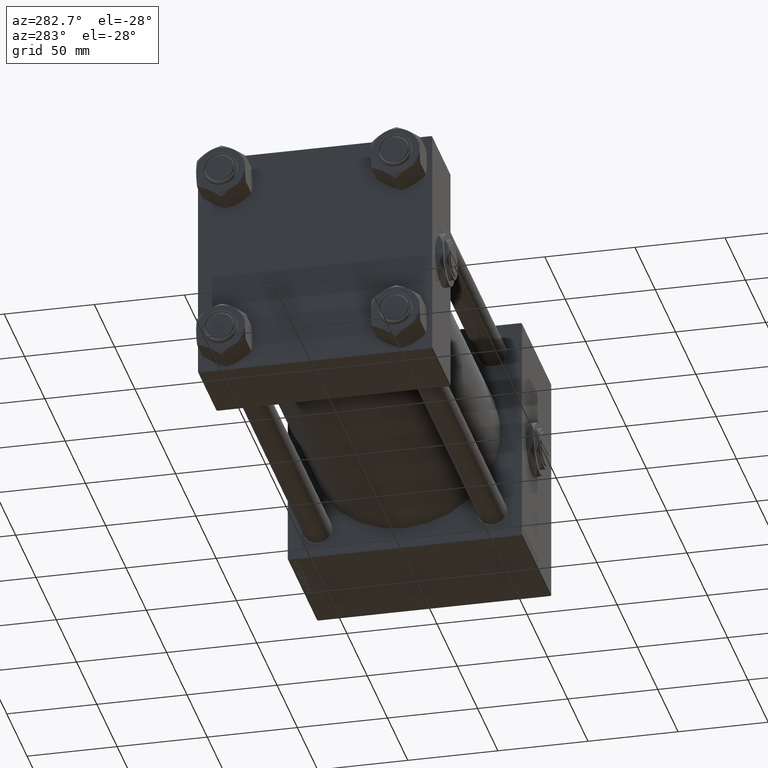
[diagram: clean part render]
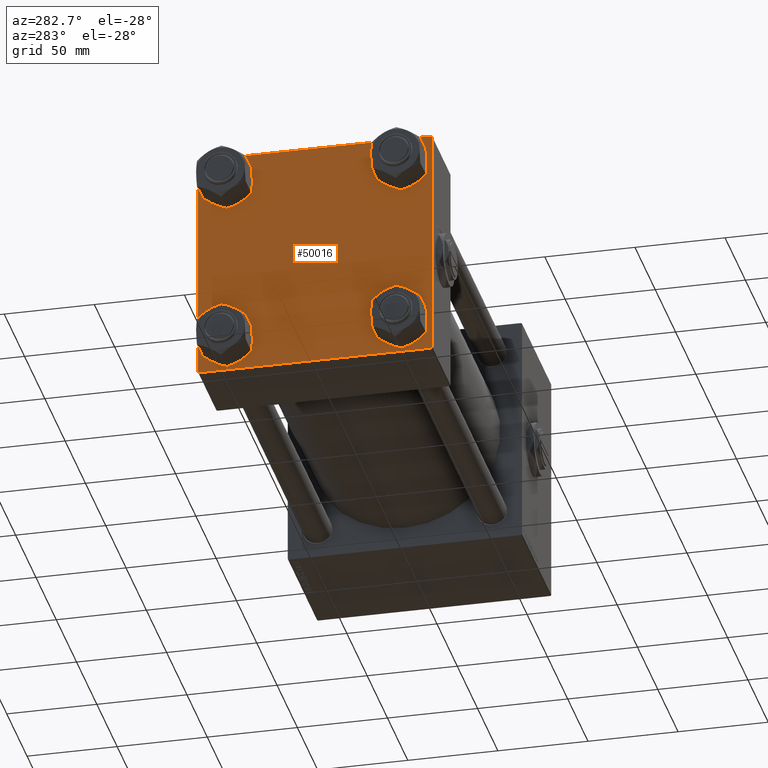
[diagram: same view with one face highlighted and labeled with its STEP entity id]
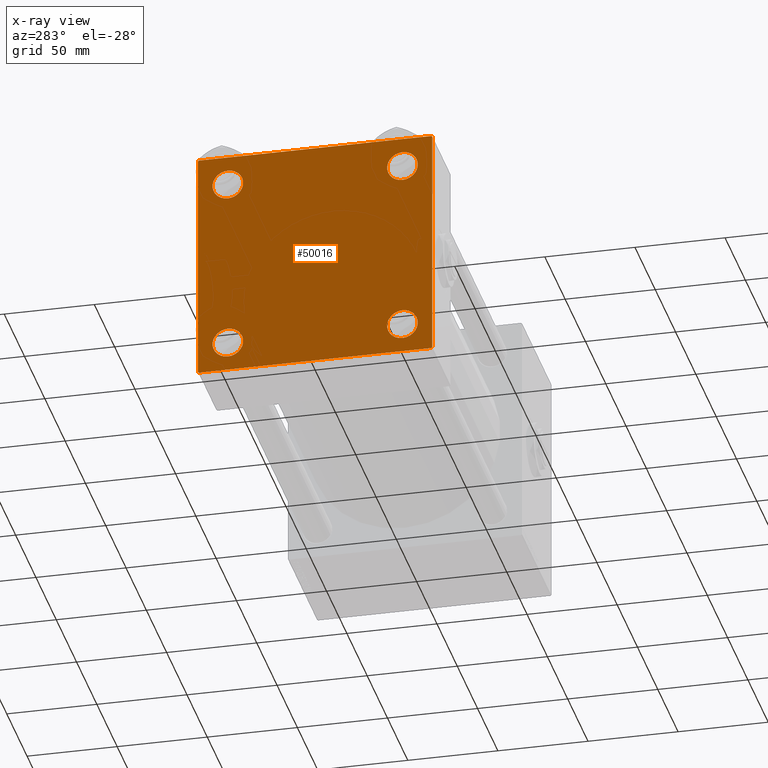
[diagram: x-ray of the same camera — body ghosted, the highlighted face saturated]
A machine part, auxiliary view. The second image highlights one B-rep face of the part: STEP entity #50016.
The next image is the same camera in x-ray: the body ghosted, the highlighted face saturated — about 0% of this face is hidden behind the body in this view.
In plain terms, the highlighted planar face has unit normal (-1, 0, 0).
Its self-contained STEP definition (entity closure, byte-faithful):
#99 = CARTESIAN_POINT ( 'NONE',  ( 0.000000000000000000, 48.45000000000000995, 39.95000000000000284 ) ) ;
#860 = VECTOR ( 'NONE', #36098, 1000.000000000000000 ) ;
#947 = EDGE_CURVE ( 'NONE', #11981, #24299, #25881, .T. ) ;
#997 = CARTESIAN_POINT ( 'NONE',  ( 0.000000000000000000, -65.00000000000000000, 64.50000000000000000 ) ) ;
#1077 = CARTESIAN_POINT ( 'NONE',  ( 0.000000000000000000, 48.45000000000000995, 48.45000000000001705 ) ) ;
#1136 = DIRECTION ( 'NONE',  ( 0.000000000000000000, -0.7071067811865279218, 0.7071067811865671127 ) ) ;
#1317 = EDGE_CURVE ( 'NONE', #9858, #25550, #48285, .T. ) ;
#1516 = AXIS2_PLACEMENT_3D ( 'NONE', #27904, #32906, #23370 ) ;
#1529 = ORIENTED_EDGE ( 'NONE', *, *, #40822, .T. ) ;
#1585 = ORIENTED_EDGE ( 'NONE', *, *, #35557, .T. ) ;
#1710 = EDGE_CURVE ( 'NONE', #24299, #15616, #50379, .T. ) ;
#1885 = DIRECTION ( 'NONE',  ( 1.000000000000000000, -0.000000000000000000, 0.000000000000000000 ) ) ;
#2509 = PLANE ( 'NONE',  #17372 ) ;
#2564 = EDGE_CURVE ( 'NONE', #47396, #10895, #8824, .T. ) ;
#3010 = AXIS2_PLACEMENT_3D ( 'NONE', #9496, #42393, #26075 ) ;
#3452 = DIRECTION ( 'NONE',  ( 0.000000000000000000, 0.000000000000000000, -1.000000000000000000 ) ) ;
#3755 = VERTEX_POINT ( 'NONE', #997 ) ;
#3824 = CARTESIAN_POINT ( 'NONE',  ( 0.000000000000000000, 48.45000000000000995, -39.95000000000000284 ) ) ;
#5153 = EDGE_LOOP ( 'NONE', ( #34721, #9813 ) ) ;
#6446 = VECTOR ( 'NONE', #48972, 1000.000000000000114 ) ;
#6722 = ORIENTED_EDGE ( 'NONE', *, *, #12443, .T. ) ;
#7063 = FACE_BOUND ( 'NONE', #30147, .T. ) ;
#7683 = CARTESIAN_POINT ( 'NONE',  ( 0.000000000000000000, 65.00000000000000000, 64.49999999999998579 ) ) ;
#7717 = VERTEX_POINT ( 'NONE', #29742 ) ;
#8033 = CARTESIAN_POINT ( 'NONE',  ( 0.000000000000000000, 64.74999999999998579, 64.74999999999998579 ) ) ;
#8527 = LINE ( 'NONE', #24854, #45633 ) ;
#8824 = LINE ( 'NONE', #8033, #6446 ) ;
#8950 = CARTESIAN_POINT ( 'NONE',  ( 0.000000000000000000, 65.00000000000000000, 65.00000000000001421 ) ) ;
#9283 = EDGE_CURVE ( 'NONE', #3755, #33249, #28835, .T. ) ;
#9496 = CARTESIAN_POINT ( 'NONE',  ( 0.000000000000000000, 48.45000000000000995, -48.45000000000001705 ) ) ;
#9813 = ORIENTED_EDGE ( 'NONE', *, *, #18021, .T. ) ;
#9858 = VERTEX_POINT ( 'NONE', #3824 ) ;
#9894 = VERTEX_POINT ( 'NONE', #28189 ) ;
#9980 = LINE ( 'NONE', #8950, #31434 ) ;
#10156 = CARTESIAN_POINT ( 'NONE',  ( 0.000000000000000000, -48.44999999999999574, -39.95000000000001705 ) ) ;
#10895 = VERTEX_POINT ( 'NONE', #7683 ) ;
#10929 = CIRCLE ( 'NONE', #1516, 8.500000000000007105 ) ;
#11200 = ORIENTED_EDGE ( 'NONE', *, *, #947, .T. ) ;
#11424 = CARTESIAN_POINT ( 'NONE',  ( 0.000000000000000000, -48.44999999999999574, -48.45000000000003126 ) ) ;
#11646 = DIRECTION ( 'NONE',  ( 1.000000000000000000, -0.000000000000000000, 0.000000000000000000 ) ) ;
#11981 = VERTEX_POINT ( 'NONE', #16521 ) ;
#12443 = EDGE_CURVE ( 'NONE', #9894, #23651, #19555, .T. ) ;
#13280 = VECTOR ( 'NONE', #22044, 1000.000000000000114 ) ;
#13751 = AXIS2_PLACEMENT_3D ( 'NONE', #50343, #1885, #47104 ) ;
#14729 = EDGE_CURVE ( 'NONE', #23651, #9894, #51203, .T. ) ;
#14982 = CARTESIAN_POINT ( 'NONE',  ( 0.000000000000000000, -64.75000000000176215, -64.74999999999816680 ) ) ;
#15026 = VECTOR ( 'NONE', #1136, 1000.000000000000000 ) ;
#15548 = CARTESIAN_POINT ( 'NONE',  ( 0.000000000000000000, 48.45000000000000995, 48.45000000000001705 ) ) ;
#15616 = VERTEX_POINT ( 'NONE', #44202 ) ;
#15632 = FACE_BOUND ( 'NONE', #38748, .T. ) ;
#15944 = EDGE_CURVE ( 'NONE', #3755, #15616, #23811, .T. ) ;
#16521 = CARTESIAN_POINT ( 'NONE',  ( 0.000000000000000000, 64.49999999999997158, -64.99999999999998579 ) ) ;
#16806 = DIRECTION ( 'NONE',  ( -0.000000000000000000, 0.7071067811865672237, 0.7071067811865279218 ) ) ;
#17249 = DIRECTION ( 'NONE',  ( 0.000000000000000000, -1.000000000000000000, -1.067522139062650425E-16 ) ) ;
#17372 = AXIS2_PLACEMENT_3D ( 'NONE', #39434, #48268, #18573 ) ;
#18021 = EDGE_CURVE ( 'NONE', #25550, #9858, #49661, .T. ) ;
#18573 = DIRECTION ( 'NONE',  ( -0.000000000000000000, 0.000000000000000000, 1.000000000000000000 ) ) ;
#19379 = FACE_BOUND ( 'NONE', #5153, .T. ) ;
#19555 = CIRCLE ( 'NONE', #20514, 8.500000000000007105 ) ;
#19786 = CARTESIAN_POINT ( 'NONE',  ( 0.000000000000000000, -65.00000000000000000, 65.00000000000000000 ) ) ;
#20514 = AXIS2_PLACEMENT_3D ( 'NONE', #30569, #21267, #37576 ) ;
#21226 = ORIENTED_EDGE ( 'NONE', *, *, #32974, .T. ) ;
#21267 = DIRECTION ( 'NONE',  ( 1.000000000000000000, -0.000000000000000000, 0.000000000000000000 ) ) ;
#22044 = DIRECTION ( 'NONE',  ( -0.000000000000000000, -0.7071067811865474617, -0.7071067811865474617 ) ) ;
#22134 = CARTESIAN_POINT ( 'NONE',  ( 0.000000000000000000, 65.00000000000000000, -64.99999999999998579 ) ) ;
#22182 = AXIS2_PLACEMENT_3D ( 'NONE', #11424, #38524, #42789 ) ;
#22190 = ORIENTED_EDGE ( 'NONE', *, *, #9283, .T. ) ;
#23370 = DIRECTION ( 'NONE',  ( 0.000000000000000000, 0.000000000000000000, 1.000000000000000000 ) ) ;
#23651 = VERTEX_POINT ( 'NONE', #10156 ) ;
#23719 = CARTESIAN_POINT ( 'NONE',  ( 0.000000000000000000, 48.45000000000000995, -56.95000000000002416 ) ) ;
#23811 = LINE ( 'NONE', #19786, #860 ) ;
#24299 = VERTEX_POINT ( 'NONE', #48708 ) ;
#24854 = CARTESIAN_POINT ( 'NONE',  ( 0.000000000000000000, 65.00000000000000000, 65.00000000000001421 ) ) ;
#25212 = VECTOR ( 'NONE', #42451, 1000.000000000000000 ) ;
#25450 = AXIS2_PLACEMENT_3D ( 'NONE', #27961, #11646, #44285 ) ;
#25534 = CARTESIAN_POINT ( 'NONE',  ( 0.000000000000000000, 64.74999999999997158, -64.74999999999997158 ) ) ;
#25550 = VERTEX_POINT ( 'NONE', #23719 ) ;
#25881 = LINE ( 'NONE', #22134, #25212 ) ;
#26075 = DIRECTION ( 'NONE',  ( 0.000000000000000000, 0.000000000000000000, 1.000000000000000000 ) ) ;
#26098 = ORIENTED_EDGE ( 'NONE', *, *, #41848, .F. ) ;
#26194 = CARTESIAN_POINT ( 'NONE',  ( 0.000000000000000000, -48.44999999999999574, 56.95000000000003837 ) ) ;
#26885 = CIRCLE ( 'NONE', #40537, 8.500000000000007105 ) ;
#27904 = CARTESIAN_POINT ( 'NONE',  ( 0.000000000000000000, -48.44999999999999574, 48.45000000000003126 ) ) ;
#27961 = CARTESIAN_POINT ( 'NONE',  ( 0.000000000000000000, -48.44999999999999574, 48.45000000000003126 ) ) ;
#28189 = CARTESIAN_POINT ( 'NONE',  ( 0.000000000000000000, -48.44999999999999574, -56.95000000000003837 ) ) ;
#28200 = ORIENTED_EDGE ( 'NONE', *, *, #1710, .T. ) ;
#28520 = ORIENTED_EDGE ( 'NONE', *, *, #2564, .T. ) ;
#28835 = LINE ( 'NONE', #29098, #40070 ) ;
#29095 = VERTEX_POINT ( 'NONE', #43354 ) ;
#29098 = CARTESIAN_POINT ( 'NONE',  ( -0.000000000000000000, -64.74999999999819522, 64.75000000000179057 ) ) ;
#29434 = ORIENTED_EDGE ( 'NONE', *, *, #29890, .T. ) ;
#29742 = CARTESIAN_POINT ( 'NONE',  ( 0.000000000000000000, 48.45000000000000995, 56.95000000000002416 ) ) ;
#29890 = EDGE_CURVE ( 'NONE', #38636, #7717, #26885, .T. ) ;
#30147 = EDGE_LOOP ( 'NONE', ( #43980, #6722 ) ) ;
#30569 = CARTESIAN_POINT ( 'NONE',  ( 0.000000000000000000, -48.44999999999999574, -48.45000000000003126 ) ) ;
#31434 = VECTOR ( 'NONE', #17249, 1000.000000000000000 ) ;
#31841 = DIRECTION ( 'NONE',  ( 1.000000000000000000, -0.000000000000000000, 0.000000000000000000 ) ) ;
#31930 = FACE_OUTER_BOUND ( 'NONE', #43264, .T. ) ;
#32906 = DIRECTION ( 'NONE',  ( 1.000000000000000000, -0.000000000000000000, 0.000000000000000000 ) ) ;
#32974 = EDGE_CURVE ( 'NONE', #7717, #38636, #34552, .T. ) ;
#33249 = VERTEX_POINT ( 'NONE', #35222 ) ;
#34552 = CIRCLE ( 'NONE', #35406, 8.500000000000007105 ) ;
#34721 = ORIENTED_EDGE ( 'NONE', *, *, #1317, .T. ) ;
#35222 = CARTESIAN_POINT ( 'NONE',  ( 0.000000000000000000, -64.49999999999997158, 65.00000000000000000 ) ) ;
#35406 = AXIS2_PLACEMENT_3D ( 'NONE', #1077, #50323, #50834 ) ;
#35557 = EDGE_CURVE ( 'NONE', #40619, #11981, #37835, .T. ) ;
#35951 = FACE_BOUND ( 'NONE', #39905, .T. ) ;
#36098 = DIRECTION ( 'NONE',  ( 0.000000000000000000, 0.000000000000000000, -1.000000000000000000 ) ) ;
#36784 = ORIENTED_EDGE ( 'NONE', *, *, #15944, .F. ) ;
#37576 = DIRECTION ( 'NONE',  ( 0.000000000000000000, 0.000000000000000000, 1.000000000000000000 ) ) ;
#37835 = LINE ( 'NONE', #25534, #13280 ) ;
#38524 = DIRECTION ( 'NONE',  ( 1.000000000000000000, -0.000000000000000000, 0.000000000000000000 ) ) ;
#38636 = VERTEX_POINT ( 'NONE', #99 ) ;
#38748 = EDGE_LOOP ( 'NONE', ( #21226, #29434 ) ) ;
#39002 = ORIENTED_EDGE ( 'NONE', *, *, #45124, .T. ) ;
#39349 = CARTESIAN_POINT ( 'NONE',  ( 0.000000000000000000, 65.00000000000000000, -64.49999999999995737 ) ) ;
#39434 = CARTESIAN_POINT ( 'NONE',  ( 0.000000000000000000, 0.000000000000000000, 0.000000000000000000 ) ) ;
#39905 = EDGE_LOOP ( 'NONE', ( #1529, #39002 ) ) ;
#40070 = VECTOR ( 'NONE', #16806, 1000.000000000000000 ) ;
#40537 = AXIS2_PLACEMENT_3D ( 'NONE', #15548, #31841, #46874 ) ;
#40619 = VERTEX_POINT ( 'NONE', #39349 ) ;
#40822 = EDGE_CURVE ( 'NONE', #43227, #29095, #45959, .T. ) ;
#41848 = EDGE_CURVE ( 'NONE', #47396, #33249, #9980, .T. ) ;
#42040 = ORIENTED_EDGE ( 'NONE', *, *, #51735, .T. ) ;
#42393 = DIRECTION ( 'NONE',  ( 1.000000000000000000, -0.000000000000000000, 0.000000000000000000 ) ) ;
#42451 = DIRECTION ( 'NONE',  ( 0.000000000000000000, -1.000000000000000000, -1.067522139062650425E-16 ) ) ;
#42789 = DIRECTION ( 'NONE',  ( 0.000000000000000000, 0.000000000000000000, 1.000000000000000000 ) ) ;
#43227 = VERTEX_POINT ( 'NONE', #26194 ) ;
#43264 = EDGE_LOOP ( 'NONE', ( #42040, #1585, #11200, #28200, #36784, #22190, #26098, #28520 ) ) ;
#43354 = CARTESIAN_POINT ( 'NONE',  ( 0.000000000000000000, -48.44999999999999574, 39.95000000000001705 ) ) ;
#43980 = ORIENTED_EDGE ( 'NONE', *, *, #14729, .T. ) ;
#44202 = CARTESIAN_POINT ( 'NONE',  ( 0.000000000000000000, -65.00000000000000000, -64.49999999999991473 ) ) ;
#44285 = DIRECTION ( 'NONE',  ( 0.000000000000000000, 0.000000000000000000, 1.000000000000000000 ) ) ;
#45124 = EDGE_CURVE ( 'NONE', #29095, #43227, #10929, .T. ) ;
#45633 = VECTOR ( 'NONE', #3452, 1000.000000000000000 ) ;
#45959 = CIRCLE ( 'NONE', #25450, 8.500000000000007105 ) ;
#46874 = DIRECTION ( 'NONE',  ( 0.000000000000000000, 0.000000000000000000, 1.000000000000000000 ) ) ;
#47104 = DIRECTION ( 'NONE',  ( 0.000000000000000000, 0.000000000000000000, 1.000000000000000000 ) ) ;
#47396 = VERTEX_POINT ( 'NONE', #51499 ) ;
#48268 = DIRECTION ( 'NONE',  ( -1.000000000000000000, 0.000000000000000000, -0.000000000000000000 ) ) ;
#48285 = CIRCLE ( 'NONE', #3010, 8.500000000000007105 ) ;
#48708 = CARTESIAN_POINT ( 'NONE',  ( 0.000000000000000000, -64.49999999999994316, -65.00000000000000000 ) ) ;
#48972 = DIRECTION ( 'NONE',  ( 0.000000000000000000, 0.7071067811865474617, -0.7071067811865474617 ) ) ;
#49661 = CIRCLE ( 'NONE', #13751, 8.500000000000007105 ) ;
#50016 = ADVANCED_FACE ( 'NONE', ( #35951, #7063, #19379, #15632, #31930 ), #2509, .T. ) ;
#50323 = DIRECTION ( 'NONE',  ( 1.000000000000000000, -0.000000000000000000, 0.000000000000000000 ) ) ;
#50343 = CARTESIAN_POINT ( 'NONE',  ( 0.000000000000000000, 48.45000000000000995, -48.45000000000001705 ) ) ;
#50379 = LINE ( 'NONE', #14982, #15026 ) ;
#50834 = DIRECTION ( 'NONE',  ( 0.000000000000000000, 0.000000000000000000, 1.000000000000000000 ) ) ;
#51203 = CIRCLE ( 'NONE', #22182, 8.500000000000007105 ) ;
#51499 = CARTESIAN_POINT ( 'NONE',  ( 0.000000000000000000, 64.49999999999997158, 65.00000000000001421 ) ) ;
#51735 = EDGE_CURVE ( 'NONE', #10895, #40619, #8527, .T. ) ;